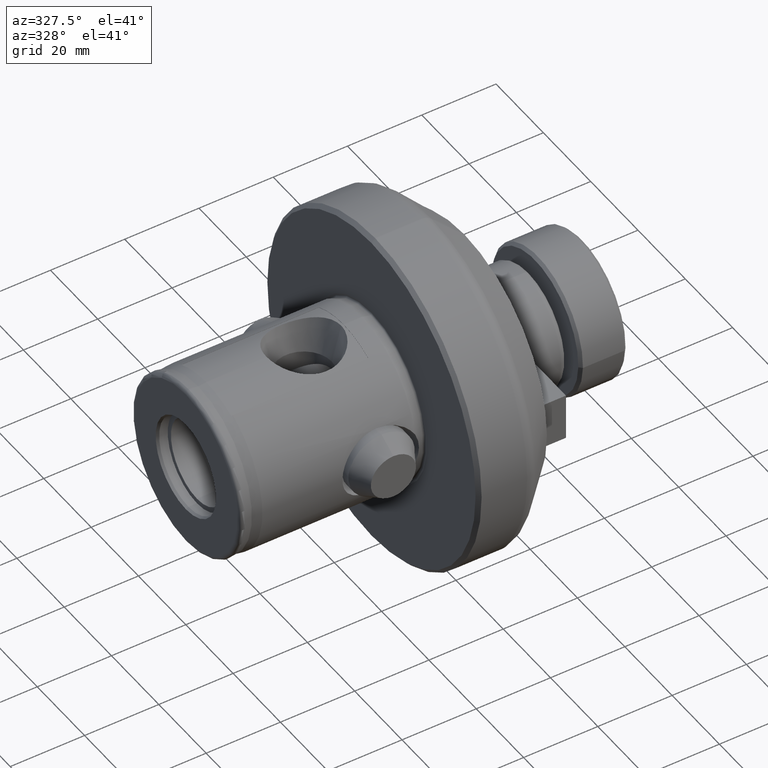
[diagram: clean part render]
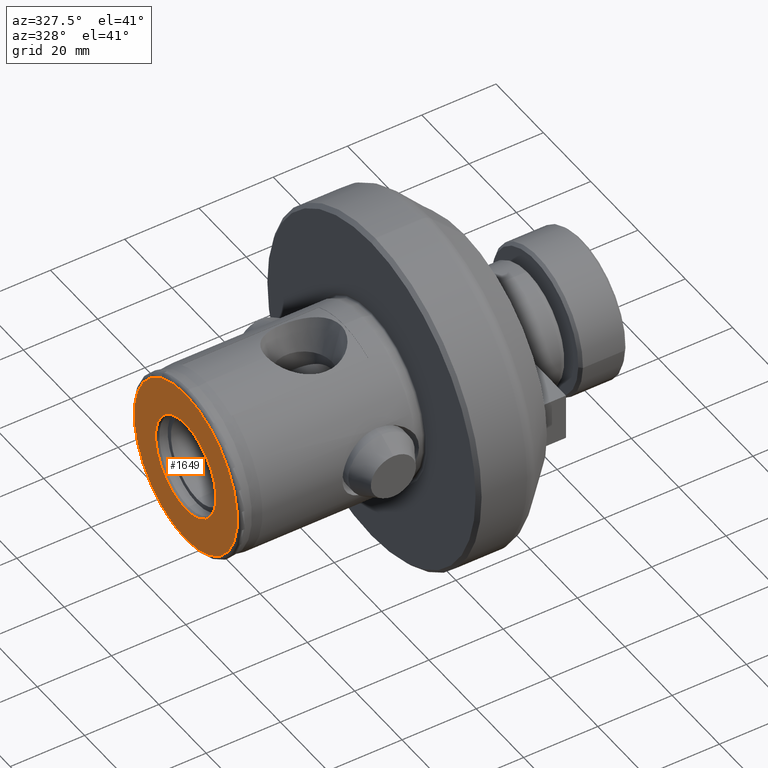
[diagram: same view with one face highlighted and labeled with its STEP entity id]
A machine part, auxiliary view. The second image highlights one B-rep face of the part: STEP entity #1649.
In plain terms, the highlighted planar face has unit normal (1, 0, 0).
Its self-contained STEP definition (entity closure, byte-faithful):
#100 = ORIENTED_EDGE ( 'NONE', *, *, #3216, .T. ) ;
#115 = ORIENTED_EDGE ( 'NONE', *, *, #3363, .T. ) ;
#130 = ORIENTED_EDGE ( 'NONE', *, *, #3180, .F. ) ;
#134 = ORIENTED_EDGE ( 'NONE', *, *, #2975, .F. ) ;
#765 = CARTESIAN_POINT ( 'NONE',  ( -2.168404344971008900E-016, 2.742092521891342400E-015, -21.79999999999998600 ) ) ;
#766 = CARTESIAN_POINT ( 'NONE',  ( -2.168404344971008900E-016, 0.0000000000000000000, 21.79999999999998600 ) ) ;
#829 = CARTESIAN_POINT ( 'NONE',  ( 1.111307226797642000E-015, 1.561424668912875100E-015, -12.75000000000000000 ) ) ;
#830 = CARTESIAN_POINT ( 'NONE',  ( 1.111307226797642000E-015, 0.0000000000000000000, 12.75000000000000000 ) ) ;
#1649 = ADVANCED_FACE ( 'NONE', ( #4382, #4386 ), #5068, .F. ) ;
#2013 = EDGE_LOOP ( 'NONE', ( #115, #100 ) ) ;
#2025 = EDGE_LOOP ( 'NONE', ( #130, #134 ) ) ;
#2228 = DIRECTION ( 'NONE',  ( 0.0000000000000000000, 0.0000000000000000000, 1.000000000000000000 ) ) ;
#2329 = DIRECTION ( 'NONE',  ( -1.000000000000000000, -0.0000000000000000000, -0.0000000000000000000 ) ) ;
#2578 = CIRCLE ( 'NONE', #2852, 21.79999999999998600 ) ;
#2852 = AXIS2_PLACEMENT_3D ( 'NONE', #7514, #2329, #2228 ) ;
#2975 = EDGE_CURVE ( 'NONE', #8385, #8384, #4528, .T. ) ;
#3180 = EDGE_CURVE ( 'NONE', #8384, #8385, #5730, .T. ) ;
#3216 = EDGE_CURVE ( 'NONE', #8363, #8361, #3583, .T. ) ;
#3363 = EDGE_CURVE ( 'NONE', #8361, #8363, #2578, .T. ) ;
#3583 = CIRCLE ( 'NONE', #6822, 21.79999999999998600 ) ;
#3645 = DIRECTION ( 'NONE',  ( 0.0000000000000000000, 0.0000000000000000000, 1.000000000000000000 ) ) ;
#3646 = DIRECTION ( 'NONE',  ( -1.000000000000000000, -0.0000000000000000000, -0.0000000000000000000 ) ) ;
#3663 = CARTESIAN_POINT ( 'NONE',  ( -2.168404344971008900E-016, 0.0000000000000000000, 0.0000000000000000000 ) ) ;
#3744 = CARTESIAN_POINT ( 'NONE',  ( 1.111307226797642000E-015, 0.0000000000000000000, 0.0000000000000000000 ) ) ;
#3746 = DIRECTION ( 'NONE',  ( -1.000000000000000000, -0.0000000000000000000, -0.0000000000000000000 ) ) ;
#3747 = DIRECTION ( 'NONE',  ( 0.0000000000000000000, 0.0000000000000000000, 1.000000000000000000 ) ) ;
#4382 = FACE_BOUND ( 'NONE', #2025, .T. ) ;
#4386 = FACE_OUTER_BOUND ( 'NONE', #2013, .T. ) ;
#4528 = CIRCLE ( 'NONE', #6965, 12.75000000000000000 ) ;
#5068 = PLANE ( 'NONE',  #7022 ) ;
#5069 = CARTESIAN_POINT ( 'NONE',  ( 4.472333961502705800E-016, 21.79999999999998600, 0.0000000000000000000 ) ) ;
#5071 = DIRECTION ( 'NONE',  ( 0.0000000000000000000, 0.0000000000000000000, -1.000000000000000000 ) ) ;
#5072 = DIRECTION ( 'NONE',  ( 1.000000000000000000, 0.0000000000000000000, 0.0000000000000000000 ) ) ;
#5243 = DIRECTION ( 'NONE',  ( 0.0000000000000000000, 0.0000000000000000000, 1.000000000000000000 ) ) ;
#5244 = CARTESIAN_POINT ( 'NONE',  ( 1.111307226797642000E-015, 0.0000000000000000000, 0.0000000000000000000 ) ) ;
#5245 = DIRECTION ( 'NONE',  ( -1.000000000000000000, -0.0000000000000000000, -0.0000000000000000000 ) ) ;
#5730 = CIRCLE ( 'NONE', #6848, 12.75000000000000000 ) ;
#6822 = AXIS2_PLACEMENT_3D ( 'NONE', #3663, #3646, #3645 ) ;
#6848 = AXIS2_PLACEMENT_3D ( 'NONE', #3744, #3746, #3747 ) ;
#6965 = AXIS2_PLACEMENT_3D ( 'NONE', #5244, #5245, #5243 ) ;
#7022 = AXIS2_PLACEMENT_3D ( 'NONE', #5069, #5072, #5071 ) ;
#7514 = CARTESIAN_POINT ( 'NONE',  ( -2.168404344971008900E-016, 0.0000000000000000000, 0.0000000000000000000 ) ) ;
#8361 = VERTEX_POINT ( 'NONE', #766 ) ;
#8363 = VERTEX_POINT ( 'NONE', #765 ) ;
#8384 = VERTEX_POINT ( 'NONE', #830 ) ;
#8385 = VERTEX_POINT ( 'NONE', #829 ) ;